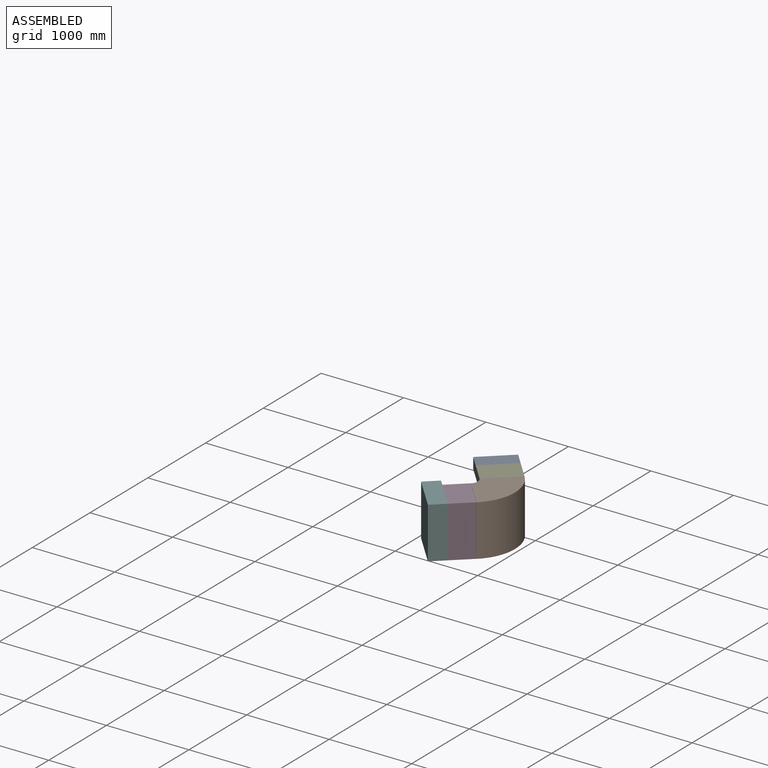
[diagram: assembled view]
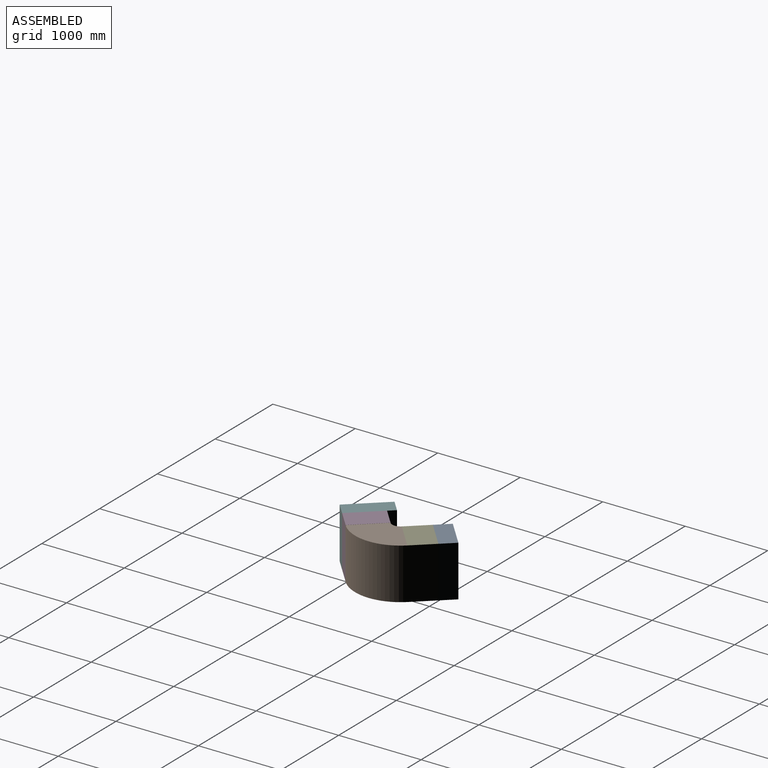
[diagram: assembled view, second angle]
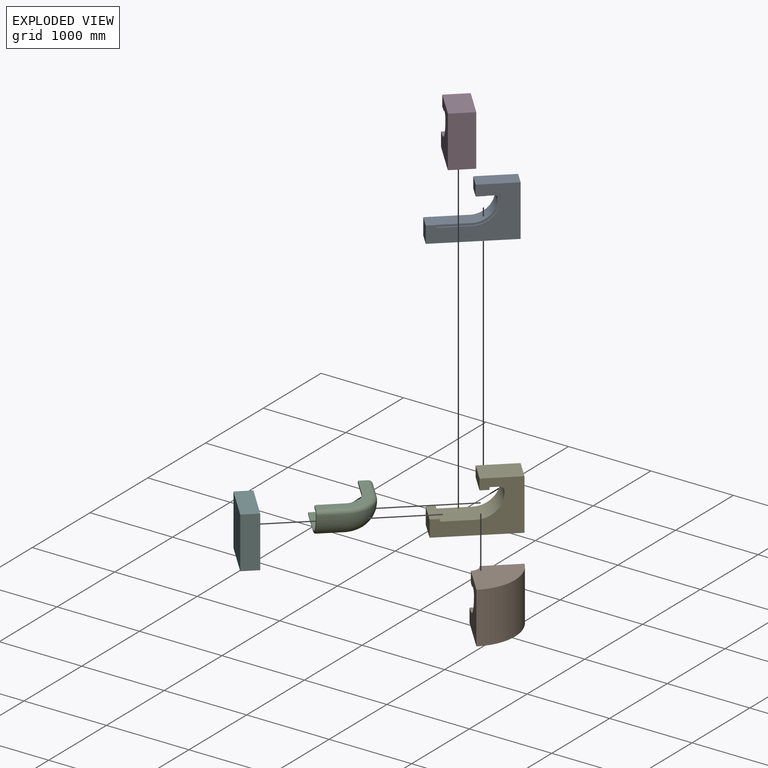
[diagram: exploded view]
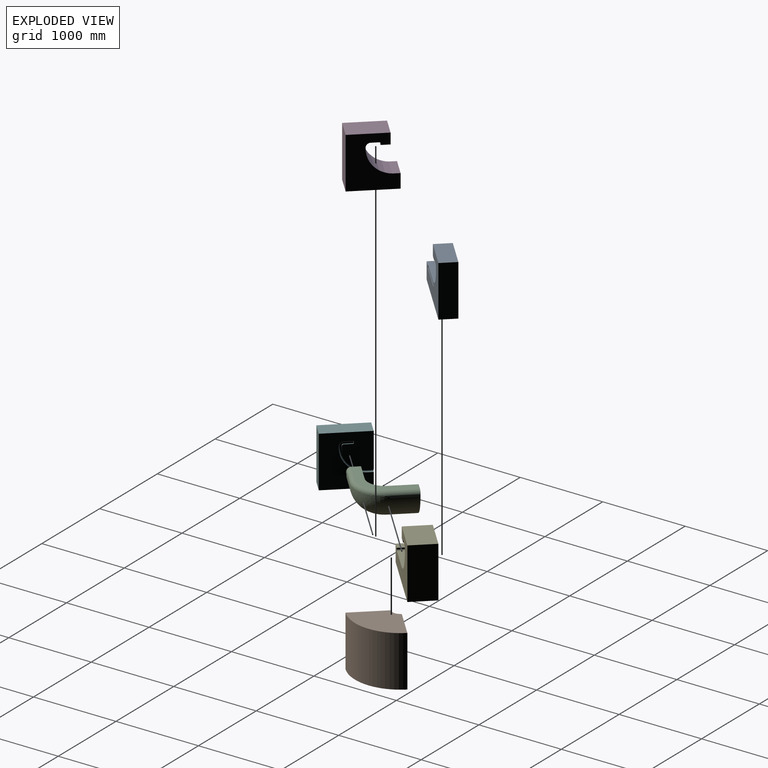
[diagram: exploded view, second angle]
ASSEMBLY  parts=6 mates=5
PART A: 19 faces, bbox 679.5x973.1x633.5 mm
  f0: plane 180.47x95.27mm, normal (0,0,-1), area 1002.1mm2, adj f1,f9,f10,f11,f13
  f1: plane 223.6x179.9mm, normal (0,0,-1), area 20000mm2, adj f0,f2,f10,f11
  f2: plane 178.2x130mm, normal (0.45,-0.89,0), area 26000mm2, adj f1,f3,f10,f11
  f3: plane 491.75x382.5mm, normal (0,0,1), area 90000mm2, adj f2,f4,f10,f11
  f4: plane 620x178.2mm, normal (-0.45,0.89,0), area 123999.6mm2, adj f3,f5,f10,f11
  f5: plane 937.24x609.5mm, normal (0,0,-1), area 189998.8mm2, adj f4,f6,f10,f11
  f6: plane 200x178.2mm, normal (0.45,-0.89,0), area 40000mm2, adj f5,f7,f10,f11
  f7: plane 223.6x179.9mm, normal (0,0,1), area 20000mm2, adj f6,f8,f10,f11
  f8: plane 180.65x93.17mm, normal (0,0,1), area 982.2mm2, adj f7,f9,f10,f11,f18
  f9: extruded ~636.47x452.95mm, area 175927mm2, adj f0,f8,f10,f15
  f10: plane 846.45x620.01mm, normal (-0.89,-0.45,0), area 329137.2mm2, adj f0,f1,f2,f3,f4,f5,f6,f7
  f11: plane 847.6x621.16mm, normal (0.89,0.45,0), area 300875.6mm2, adj f0,f1,f2,f3,f4,f5,f6,f7
  f12: extruded ~24.67x0mm, area 0mm2, adj f11,f16
  f13: extruded ~6.73x6.73mm, area 12.5mm2, adj f0,f11,f16
  f14: bspline ~781.44x401.48mm, area 7692.6mm2, adj f11,f15,f17,f18
  f15: plane 583.69x353.45mm, normal (0.89,0.45,0), area 23440.7mm2, adj f9,f14,f16,f18
  f16: bspline ~60.04x6.73mm, area 195mm2, adj f12,f13,f15,f17
  f17: bspline ~6.74x5.33mm, area 30.5mm2, adj f11,f14,f16
  f18: bspline ~30x13.86mm, area 280.1mm2, adj f8,f11,f14,f15
PART B: 9 faces, bbox 740.3x550.8x620.3 mm
  f0: plane 740.03x550.52mm, normal (0,0,-1), area 237590.1mm2, adj f1,f6,f7,f8
  f1: cone r=0.59mm half-angle=0deg, axis (0,0,-1), area 156.3mm2, adj f0,f2,f7,f8
  f2: revolved ~471.15x350.22mm, area 276167.8mm2, adj f1,f3,f7,f8
  f3: plane 269.27x154.17mm, normal (0,0,-1), area 23563.3mm2, adj f2,f4,f7,f8
  f4: revolved ~134.77x130mm, area 20422.4mm2, adj f3,f5,f7,f8
  f5: plane 740.03x504.33mm, normal (0,0,1), area 229735.2mm2, adj f4,f6,f7,f8
  f6: revolved ~740.02x620mm, area 535648.2mm2, adj f0,f5,f7,f8
  f7: plane 620x490.06mm, normal (-0.89,-0.45,0), area 230372.5mm2, adj f0,f1,f2,f3,f4,f5,f6
  f8: plane 620.27x490.33mm, normal (0.45,-0.89,0), area 230372.5mm2, adj f0,f1,f2,f3,f4,f5,f6
PART C: 20 faces, bbox 928.7x929.8x375.1 mm
  f0: bspline ~438.54x437.1mm, area 183340.5mm2, adj f1,f5,f6,f10,f14
  f1: plane 320.06x248.71mm, normal (-0.74,-0.67,0), area 9427.2mm2, adj f0,f2,f3,f5,f13
  f2: cylinder r=15mm len=82.05mm, axis (0.67,-0.74,0), area 2285.5mm2, adj f1,f3,f4,f7
  f3: bspline ~350x263.55mm, area 13855.6mm2, adj f1,f2,f9,f12
  f4: bspline ~15x13.15mm, area 103mm2, adj f2,f5,f6,f8
  f5: cylinder r=3mm len=15mm, axis (0,0,1), area 70.7mm2, adj f0,f1,f4,f6
  f6: plane 220.45x199.03mm, normal (-0.67,0.74,0), area 7988.1mm2, adj f0,f4,f5,f8,f11
  f7: plane 276.54x262.98mm, normal (0,0,1), area 27645mm2, adj f2,f8,f9,f11
  f8: cylinder r=3mm len=213.55mm, axis (-0.74,-0.67,0), area 1343mm2, adj f4,f6,f7,f11
  f9: bspline ~460.81x457.21mm, area 172958mm2, adj f3,f7,f11,f12
  f10: bspline ~451.96x451.95mm, area 193558.2mm2, adj f0,f11,f14
  f11: bspline ~494.33x494.32mm, area 272610.1mm2, adj f6,f7,f8,f9,f10,f12
  f12: extruded ~690.6x666.14mm, area 324605.4mm2, adj f3,f9,f11,f13,f14,f16,f17,f18
  f13: plane 230.7x208.28mm, normal (-0.74,-0.67,0), area 4662.2mm2, adj f1,f12,f14,f19
  f14: extruded ~671.84x649.89mm, area 287761mm2, adj f0,f10,f12,f13,f15,f16,f19
  f15: plane 475.05x428.9mm, normal (-0.67,0.74,0), area 23438.2mm2, adj f14,f16,f18,f19
  f16: bspline ~61.8x7.06mm, area 204.2mm2, adj f12,f14,f15,f17
  f17: bspline ~7.06x5mm, area 16.5mm2, adj f12,f16,f18
  f18: bspline ~485.81x439.3mm, area 7870.8mm2, adj f12,f15,f17,f19
  f19: cylinder r=5mm len=15mm, axis (0,0,1), area 117.8mm2, adj f13,f14,f15,f18
PART D: 9 faces, bbox 646.3x530.2x647.1 mm
  f0: plane 647.09x517.15mm, normal (-0.45,0.89,0), area 229357.5mm2, adj f1,f2,f3,f4,f5,f6,f7
  f1: plane 619.19x503.12mm, normal (0,0,-1), area 156433.9mm2, adj f0,f2,f7,f8
  f2: plane 253.42x170mm, normal (-0.89,-0.45,0), area 48351.1mm2, adj f0,f1,f3,f8
  f3: extruded ~440.99x412.32mm, area 213482.9mm2, adj f0,f2,f4,f8
  f4: plane 298.82x218.23mm, normal (0,0,-1), area 28442mm2, adj f0,f3,f5,f8
  f5: plane 253.42x130mm, normal (-0.89,-0.45,0), area 36974.6mm2, adj f0,f4,f6,f8
  f6: plane 530.08x457.72mm, normal (0,0,1), area 127989.1mm2, adj f0,f5,f7,f8
  f7: plane 620x253.43mm, normal (0.89,0.45,0), area 176340mm2, adj f0,f1,f6,f8
  f8: plane 620x490.06mm, normal (0.45,-0.89,0), area 230372.5mm2, adj f1,f2,f3,f4,f5,f6,f7
PART E: 11 faces, bbox 913.4x867.3x620 mm
  f0: plane 705.12x636.63mm, normal (-0.67,-0.74,0), area 300815.9mm2, adj f1,f2,f3,f4,f5,f6,f8,f9
  f1: plane 297.71x282.51mm, normal (0,0,-1), area 31081mm2, adj f0,f2,f7,f9
  f2: plane 230.7x208.28mm, normal (0.74,-0.67,0), area 40405.3mm2, adj f0,f1,f3,f7
  f3: plane 542.29x532.26mm, normal (0,0,1), area 139864.6mm2, adj f0,f2,f4,f7
  f4: plane 620.01x230.7mm, normal (-0.74,0.67,0), area 192705.9mm2, adj f0,f3,f5,f7
  f5: plane 913.41x867.32mm, normal (0,0,-1), area 295268.2mm2, adj f0,f4,f6,f7
  f6: plane 230.7x208.28mm, normal (0.74,-0.67,0), area 62166.9mm2, adj f0,f5,f7,f8
  f7: plane 705.12x636.63mm, normal (0.67,0.74,0), area 300927.5mm2, adj f1,f2,f3,f4,f5,f6,f8,f9
  f8: plane 297.71x282.51mm, normal (0,0,1), area 31081mm2, adj f0,f6,f7,f10
  f9: extruded ~690.62x666.17mm, area 323934.1mm2, adj f0,f1,f7,f10
  f10: plane 230.7x208.28mm, normal (-0.74,0.67,0), area 4662.2mm2, adj f0,f7,f8,f9
PART F: 15 faces, bbox 719.2x600.5x629.5 mm
  f0: plane 223.34x179.39mm, normal (0,0,1), area 19884.7mm2, adj f1,f4,f5,f6
  f1: plane 491.75x382.5mm, normal (0,0,1), area 90000mm2, adj f0,f2,f5,f6
  f2: plane 620x178.21mm, normal (0.89,0.45,0), area 123999.6mm2, adj f1,f3,f5,f6
  f3: plane 580.34x427.64mm, normal (0,0,-1), area 109884.7mm2, adj f2,f4,f5,f6
  f4: plane 620.49x178.7mm, normal (-0.89,-0.45,0), area 123598mm2, adj f0,f3,f5,f6,f7,f8,f12
  f5: plane 620x489.54mm, normal (0.45,-0.89,0), area 340641.6mm2, adj f0,f1,f2,f3,f4
  f6: plane 629.48x499.02mm, normal (-0.45,0.89,0), area 320828.7mm2, adj f0,f1,f2,f3,f4,f7,f8,f9
  f7: bspline ~421.3x412.57mm, area 9162.4mm2, adj f4,f6,f10,f12,f14
  f8: bspline ~350x313.31mm, area 13855mm2, adj f4,f6,f11,f12,f13
  f9: bspline ~15x14.73mm, area 103mm2, adj f6,f10,f13,f14
  f10: plane 27x10.69mm, normal (0.89,0.45,0), area 293.1mm2, adj f6,f7,f9,f14
  f11: bspline ~397.14x391.03mm, area -0.2mm2, adj f6,f8
  f12: plane 320.06x298.53mm, normal (-0.45,0.89,0), area 9427.2mm2, adj f4,f7,f8,f13,f14
  f13: cylinder r=15mm len=93.24mm, axis (0.89,0.45,0), area 2285.6mm2, adj f6,f8,f9,f12
  f14: cylinder r=3mm len=15mm, axis (0,0,1), area 70.7mm2, adj f7,f9,f10,f12
PLACE A rot(axis=(0,0,-1),74.9deg) t=(-10229.42,7773.28,-0.02)mm
PLACE B rot(axis=(0,0,-1),74.9deg) t=(-10344.15,7901.15,0.02)mm
PLACE C at identity
PLACE D rot(axis=(0,0,-1),74.9deg) t=(-10345.96,7901.26,0.01)mm
PLACE E rot(axis=(0,0,-1),95.8deg) t=(-8112.27,8985.34,-0.03)mm
PLACE F rot(axis=(0,0,-1),74.9deg) t=(-10345.91,7901.26,0.01)mm
MATE planar F.f12 <-> C.f1  axis (-0.74,-0.67,0) through (-11043.43,-2025.06,-145)mm
MATE planar E.f10 <-> F.f12  axis (-0.74,-0.67,0) through (-11043.43,-2025.06,-145)mm
MATE planar A.f3 <-> E.f3  axis (0,0,1) through (-10954.81,-1526.32,275)mm
MATE planar B.f5 <-> E.f3  axis (0,0,1) through (-10412.52,-1455.47,275)mm
MATE planar D.f6 <-> F.f1  axis (0,0,1) through (-10664.11,-2422.82,275.02)mm
